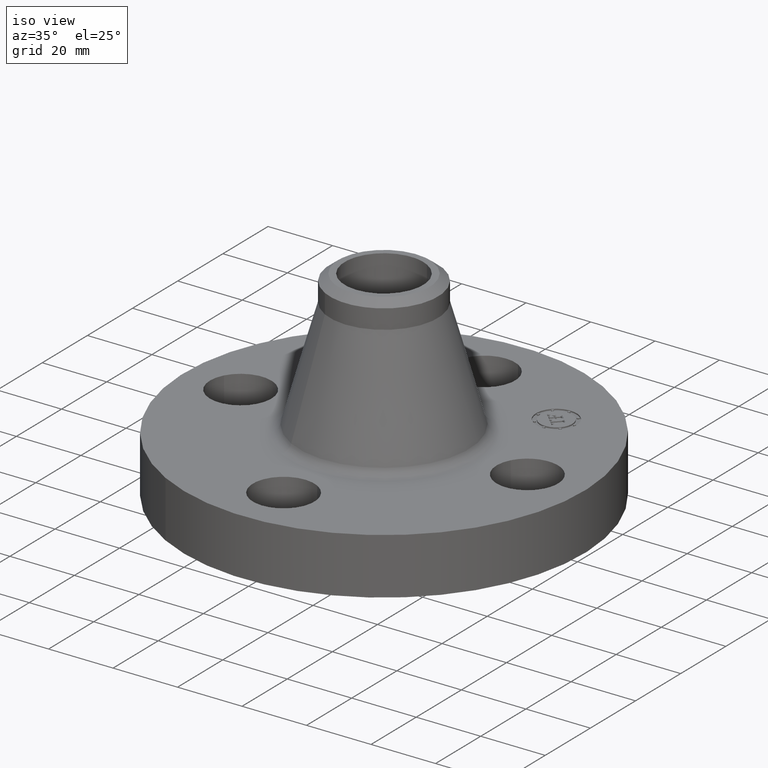
[diagram: clean part render]
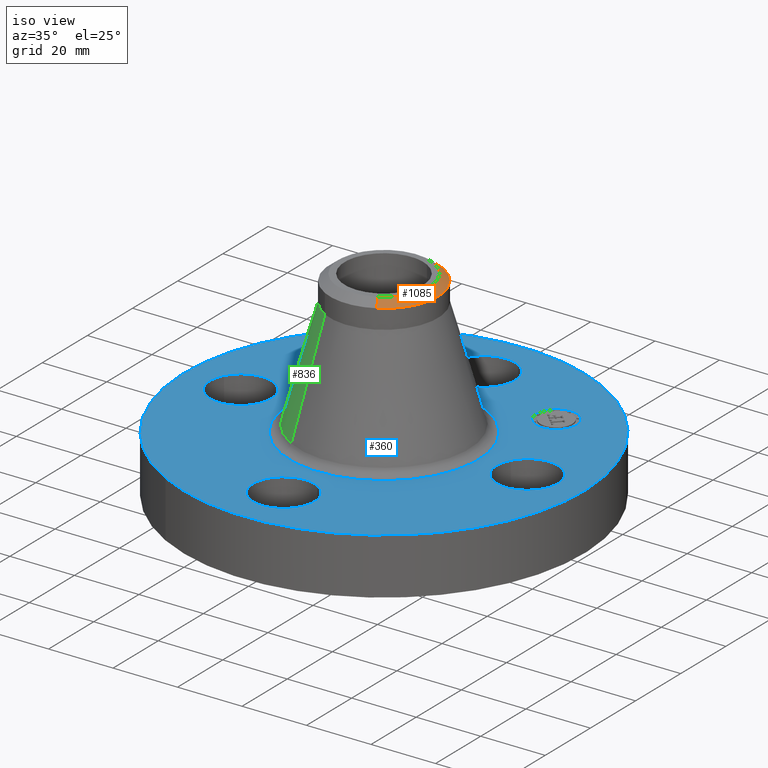
[diagram: same view with three faces highlighted in distinct colors, each labeled with its STEP entity id]
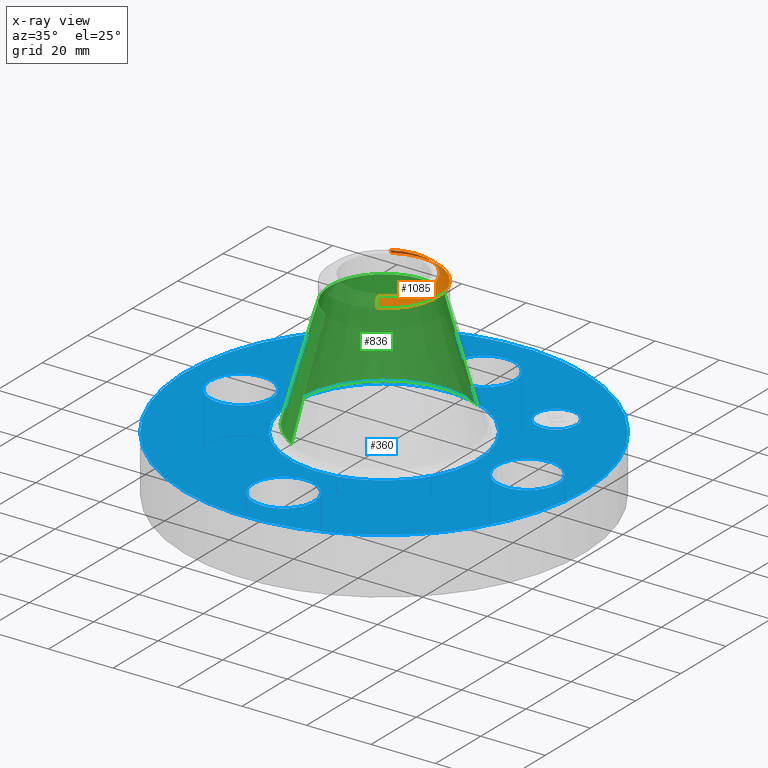
[diagram: x-ray of the same camera — body ghosted, the three highlighted faces saturated]
A machine part, iso view with three faces highlighted in distinct colors.
The next image is the same camera in x-ray (body ghosted, the three faces saturated) — at least one of them is partly hidden behind the body in this view.
Their STEP definitions:

[orange] entity #1085 — the highlighted conical surface has half-angle 52.5 deg.
#778=AXIS2_PLACEMENT_3D('Circle Axis2P3D',#776,#777,$) ;
#1050=AXIS2_PLACEMENT_3D('Cone Axis2P3D',#1047,#1048,#1049) ;
#1068=AXIS2_PLACEMENT_3D('Circle Axis2P3D',#1066,#1067,$) ;
#1075=AXIS2_PLACEMENT_3D('Circle Axis2P3D',#1073,#1074,$) ;
#776=CARTESIAN_POINT('Axis2P3D Location',(-5.24514814784E-017,-1.4013217533E-011,2.44000000001)) ;
#780=CARTESIAN_POINT('Vertex',(0.267155162633,-0.489024244991,2.44000000001)) ;
#782=CARTESIAN_POINT('Vertex',(-0.267155162633,0.489024244991,2.44000000001)) ;
#1047=CARTESIAN_POINT('Axis2P3D Location',(0.,0.,2.44000000001)) ;
#1052=CARTESIAN_POINT('Line Origine',(-0.291788009056,0.53411436792,2.40057479979)) ;
#1056=CARTESIAN_POINT('Vertex',(-0.31642085548,0.57920449085,2.36114959959)) ;
#1059=CARTESIAN_POINT('Line Origine',(0.291788009056,-0.53411436792,2.40057479979)) ;
#1063=CARTESIAN_POINT('Vertex',(0.316420855481,-0.579204490851,2.36114959956)) ;
#1066=CARTESIAN_POINT('Axis2P3D Location',(0.,0.,2.36114959956)) ;
#1070=CARTESIAN_POINT('Vertex',(0.31642085548,0.57920449085,2.36114959959)) ;
#1073=CARTESIAN_POINT('Axis2P3D Location',(0.,0.,2.36114959956)) ;
#777=DIRECTION('Axis2P3D Direction',(0.,0.,-0.0393700787402)) ;
#1048=DIRECTION('Axis2P3D Direction',(-0.,-0.,-0.0393700787402)) ;
#1049=DIRECTION('Axis2P3D XDirection',(-0.0188750212049,0.0345504945626,0.)) ;
#1053=DIRECTION('Vector Direction',(-0.014974561121,0.02741075027,-0.023966985394)) ;
#1060=DIRECTION('Vector Direction',(0.014974561121,-0.02741075027,-0.023966985394)) ;
#1067=DIRECTION('Axis2P3D Direction',(-0.,0.,-0.0393700787402)) ;
#1074=DIRECTION('Axis2P3D Direction',(-0.,0.,-0.0393700787402)) ;
#1054=VECTOR('Line Direction',#1053,0.0393700787402) ;
#1061=VECTOR('Line Direction',#1060,0.0393700787402) ;
#1079=ORIENTED_EDGE('',*,*,#1058,.F.) ;
#1080=ORIENTED_EDGE('',*,*,#784,.F.) ;
#1081=ORIENTED_EDGE('',*,*,#1065,.T.) ;
#1082=ORIENTED_EDGE('',*,*,#1072,.T.) ;
#1083=ORIENTED_EDGE('',*,*,#1077,.F.) ;
#1085=ADVANCED_FACE('PartBody',(#1084),#1051,.T.) ;
#779=CIRCLE('generated circle',#778,0.557240157504) ;
#1069=CIRCLE('generated circle',#1068,0.660000000005) ;
#1076=CIRCLE('generated circle',#1075,0.660000000005) ;
#1051=CONICAL_SURFACE('Cone',#1050,0.557240157482,0.916297857297) ;
#784=EDGE_CURVE('',#781,#783,#779,.F.) ;
#1058=EDGE_CURVE('',#783,#1057,#1055,.T.) ;
#1065=EDGE_CURVE('',#781,#1064,#1062,.T.) ;
#1072=EDGE_CURVE('',#1064,#1071,#1069,.F.) ;
#1077=EDGE_CURVE('',#1057,#1071,#1076,.T.) ;
#1078=EDGE_LOOP('',(#1079,#1080,#1081,#1082,#1083)) ;
#1084=FACE_OUTER_BOUND('',#1078,.T.) ;
#1055=LINE('Line',#1052,#1054) ;
#1062=LINE('Line',#1059,#1061) ;
#781=VERTEX_POINT('',#780) ;
#783=VERTEX_POINT('',#782) ;
#1057=VERTEX_POINT('',#1056) ;
#1064=VERTEX_POINT('',#1063) ;
#1071=VERTEX_POINT('',#1070) ;

[blue] entity #360 — the highlighted planar face has unit normal (0, 0, -1).
#119=AXIS2_PLACEMENT_3D('Circle Axis2P3D',#117,#118,$) ;
#246=AXIS2_PLACEMENT_3D('Plane Axis2P3D',#243,#244,#245) ;
#250=AXIS2_PLACEMENT_3D('Circle Axis2P3D',#248,#249,$) ;
#259=AXIS2_PLACEMENT_3D('Circle Axis2P3D',#257,#258,$) ;
#272=AXIS2_PLACEMENT_3D('Circle Axis2P3D',#270,#271,$) ;
#281=AXIS2_PLACEMENT_3D('Circle Axis2P3D',#279,#280,$) ;
#290=AXIS2_PLACEMENT_3D('Circle Axis2P3D',#288,#289,$) ;
#299=AXIS2_PLACEMENT_3D('Circle Axis2P3D',#297,#298,$) ;
#308=AXIS2_PLACEMENT_3D('Circle Axis2P3D',#306,#307,$) ;
#317=AXIS2_PLACEMENT_3D('Circle Axis2P3D',#315,#316,$) ;
#326=AXIS2_PLACEMENT_3D('Circle Axis2P3D',#324,#325,$) ;
#335=AXIS2_PLACEMENT_3D('Circle Axis2P3D',#333,#334,$) ;
#344=AXIS2_PLACEMENT_3D('Circle Axis2P3D',#342,#343,$) ;
#353=AXIS2_PLACEMENT_3D('Circle Axis2P3D',#351,#352,$) ;
#46=CARTESIAN_POINT('Vertex',(1.4209065393,0.179784576977,0.689999999988)) ;
#72=CARTESIAN_POINT('Vertex',(2.07909346074,-0.179784576955,0.690000000003)) ;
#76=CARTESIAN_POINT('Control Point',(1.4209065393,0.179784576977,0.690000000003)) ;
#77=CARTESIAN_POINT('Control Point',(1.44914703461,0.231478456903,0.690000000002)) ;
#78=CARTESIAN_POINT('Control Point',(1.48753759951,0.27762732854,0.690000000002)) ;
#79=CARTESIAN_POINT('Control Point',(1.53463466834,0.315564920645,0.690000000001)) ;
#80=CARTESIAN_POINT('Control Point',(1.64116640576,0.370929207243,0.689999999999)) ;
#81=CARTESIAN_POINT('Control Point',(1.76072322347,0.38190110985,0.689999999998)) ;
#82=CARTESIAN_POINT('Control Point',(1.82085180885,0.375424381748,0.689999999997)) ;
#83=CARTESIAN_POINT('Control Point',(1.93532958528,0.339243530298,0.689999999996)) ;
#84=CARTESIAN_POINT('Control Point',(2.02762732855,0.262462400496,0.689999999994)) ;
#85=CARTESIAN_POINT('Control Point',(2.06556492066,0.215365331668,0.689999999993)) ;
#86=CARTESIAN_POINT('Control Point',(2.12092920725,0.108833594252,0.689999999992)) ;
#87=CARTESIAN_POINT('Control Point',(2.13190110986,-0.0107232234562,0.689999999991)) ;
#88=CARTESIAN_POINT('Control Point',(2.12542438176,-0.0708518088378,0.68999999999)) ;
#89=CARTESIAN_POINT('Control Point',(2.10733395603,-0.128090697051,0.689999999989)) ;
#90=CARTESIAN_POINT('Control Point',(2.07909346072,-0.179784576977,0.689999999988)) ;
#117=CARTESIAN_POINT('Axis2P3D Location',(1.75000000001,0.,0.689999999988)) ;
#243=CARTESIAN_POINT('Axis2P3D Location',(0.,2.44000000001,0.690000000003)) ;
#248=CARTESIAN_POINT('Axis2P3D Location',(8.39223703654E-016,1.82136720404E-011,0.690000000003)) ;
#252=CARTESIAN_POINT('Vertex',(1.1697983142,2.14130145102,0.690000000025)) ;
#254=CARTESIAN_POINT('Vertex',(-1.1697983142,-2.14130145102,0.690000000025)) ;
#257=CARTESIAN_POINT('Axis2P3D Location',(-8.39223703654E-016,1.82131125579E-011,0.690000000003)) ;
#270=CARTESIAN_POINT('Axis2P3D Location',(0.,1.82133922992E-011,0.690000000003)) ;
#274=CARTESIAN_POINT('Vertex',(-0.551878272917,-1.01020640245,0.690000000003)) ;
#276=CARTESIAN_POINT('Vertex',(0.551878272915,1.01020640245,0.690000000003)) ;
#279=CARTESIAN_POINT('Axis2P3D Location',(0.,1.82133922992E-011,0.690000000003)) ;
#288=CARTESIAN_POINT('Axis2P3D Location',(-3.49676543189E-017,-1.75000000003,0.690000000003)) ;
#292=CARTESIAN_POINT('Vertex',(-0.179784576973,-2.07909346072,0.690000000003)) ;
#294=CARTESIAN_POINT('Vertex',(0.179784576977,-1.4209065393,0.689999999988)) ;
#297=CARTESIAN_POINT('Axis2P3D Location',(3.49676543189E-017,-1.75000000003,0.690000000003)) ;
#306=CARTESIAN_POINT('Axis2P3D Location',(-1.75000000001,5.40152349795E-012,0.690000000003)) ;
#310=CARTESIAN_POINT('Vertex',(-2.07909346074,0.179784576991,0.690000000003)) ;
#312=CARTESIAN_POINT('Vertex',(-1.4209065393,-0.179784576978,0.689999999988)) ;
#315=CARTESIAN_POINT('Axis2P3D Location',(-1.75,3.10252611004E-011,0.690000000003)) ;
#324=CARTESIAN_POINT('Axis2P3D Location',(3.49676543189E-017,1.74999999999,0.690000000003)) ;
#328=CARTESIAN_POINT('Vertex',(0.179784576973,2.07909346069,0.690000000003)) ;
#330=CARTESIAN_POINT('Vertex',(-0.179784576977,1.4209065393,0.689999999988)) ;
#333=CARTESIAN_POINT('Axis2P3D Location',(-3.49676543189E-017,1.74999999999,0.690000000003)) ;
#342=CARTESIAN_POINT('Axis2P3D Location',(1.23743686708,1.23743686702,0.690000000003)) ;
#346=CARTESIAN_POINT('Vertex',(1.06242793876,1.41244579541,0.690000000003)) ;
#348=CARTESIAN_POINT('Vertex',(1.41244579547,1.06242793871,0.690000000003)) ;
#351=CARTESIAN_POINT('Axis2P3D Location',(1.23743686711,1.23743686706,0.690000000003)) ;
#118=DIRECTION('Axis2P3D Direction',(0.,-0.,-0.0393700787402)) ;
#244=DIRECTION('Axis2P3D Direction',(0.,0.,-0.0393700787402)) ;
#245=DIRECTION('Axis2P3D XDirection',(0.0393700787402,0.,0.)) ;
#249=DIRECTION('Axis2P3D Direction',(0.,0.,-0.0393700787402)) ;
#258=DIRECTION('Axis2P3D Direction',(0.,0.,-0.0393700787402)) ;
#271=DIRECTION('Axis2P3D Direction',(0.,0.,-0.0393700787402)) ;
#280=DIRECTION('Axis2P3D Direction',(0.,0.,-0.0393700787402)) ;
#289=DIRECTION('Axis2P3D Direction',(0.,0.,-0.0393700787402)) ;
#298=DIRECTION('Axis2P3D Direction',(0.,0.,-0.0393700787402)) ;
#307=DIRECTION('Axis2P3D Direction',(0.,0.,-0.0393700787402)) ;
#316=DIRECTION('Axis2P3D Direction',(0.,0.,-0.0393700787402)) ;
#325=DIRECTION('Axis2P3D Direction',(0.,0.,-0.0393700787402)) ;
#334=DIRECTION('Axis2P3D Direction',(0.,0.,-0.0393700787402)) ;
#343=DIRECTION('Axis2P3D Direction',(0.,0.,-0.0393700787402)) ;
#352=DIRECTION('Axis2P3D Direction',(0.,0.,-0.0393700787402)) ;
#263=ORIENTED_EDGE('',*,*,#256,.F.) ;
#264=ORIENTED_EDGE('',*,*,#261,.F.) ;
#267=ORIENTED_EDGE('',*,*,#91,.T.) ;
#268=ORIENTED_EDGE('',*,*,#121,.T.) ;
#285=ORIENTED_EDGE('',*,*,#278,.T.) ;
#286=ORIENTED_EDGE('',*,*,#283,.T.) ;
#303=ORIENTED_EDGE('',*,*,#296,.T.) ;
#304=ORIENTED_EDGE('',*,*,#301,.T.) ;
#321=ORIENTED_EDGE('',*,*,#314,.T.) ;
#322=ORIENTED_EDGE('',*,*,#319,.T.) ;
#339=ORIENTED_EDGE('',*,*,#332,.T.) ;
#340=ORIENTED_EDGE('',*,*,#337,.T.) ;
#357=ORIENTED_EDGE('',*,*,#350,.T.) ;
#358=ORIENTED_EDGE('',*,*,#355,.T.) ;
#269=FACE_BOUND('',#266,.T.) ;
#287=FACE_BOUND('',#284,.T.) ;
#305=FACE_BOUND('',#302,.T.) ;
#323=FACE_BOUND('',#320,.T.) ;
#341=FACE_BOUND('',#338,.T.) ;
#359=FACE_BOUND('',#356,.T.) ;
#360=ADVANCED_FACE('PartBody',(#265,#269,#287,#305,#323,#341,#359),#247,.F.) ;
#75=B_SPLINE_CURVE_WITH_KNOTS('',5,(#76,#77,#78,#79,#80,#81,#82,#83,#84,#85,#86,#87,#88,#89,#90),.UNSPECIFIED.,.F.,.U.,(6,3,3,3,6),(-14.9618350128,-7.48091750638,0.,7.48091750638,14.9618350128),.UNSPECIFIED.) ;
#120=CIRCLE('generated circle',#119,0.375000000001) ;
#251=CIRCLE('generated circle',#250,2.44) ;
#260=CIRCLE('generated circle',#259,2.44) ;
#273=CIRCLE('generated circle',#272,1.15112406095) ;
#282=CIRCLE('generated circle',#281,1.15112406095) ;
#291=CIRCLE('generated circle',#290,0.374999999988) ;
#300=CIRCLE('generated circle',#299,0.374999999988) ;
#309=CIRCLE('generated circle',#308,0.375000000021) ;
#318=CIRCLE('generated circle',#317,0.375000000021) ;
#327=CIRCLE('generated circle',#326,0.374999999988) ;
#336=CIRCLE('generated circle',#335,0.374999999988) ;
#345=CIRCLE('generated circle',#344,0.247500000012) ;
#354=CIRCLE('generated circle',#353,0.247500000012) ;
#91=EDGE_CURVE('',#47,#73,#75,.T.) ;
#121=EDGE_CURVE('',#73,#47,#120,.T.) ;
#256=EDGE_CURVE('',#253,#255,#251,.T.) ;
#261=EDGE_CURVE('',#255,#253,#260,.T.) ;
#278=EDGE_CURVE('',#275,#277,#273,.T.) ;
#283=EDGE_CURVE('',#277,#275,#282,.T.) ;
#296=EDGE_CURVE('',#293,#295,#291,.T.) ;
#301=EDGE_CURVE('',#295,#293,#300,.T.) ;
#314=EDGE_CURVE('',#311,#313,#309,.T.) ;
#319=EDGE_CURVE('',#313,#311,#318,.T.) ;
#332=EDGE_CURVE('',#329,#331,#327,.T.) ;
#337=EDGE_CURVE('',#331,#329,#336,.T.) ;
#350=EDGE_CURVE('',#347,#349,#345,.T.) ;
#355=EDGE_CURVE('',#349,#347,#354,.T.) ;
#262=EDGE_LOOP('',(#263,#264)) ;
#266=EDGE_LOOP('',(#267,#268)) ;
#284=EDGE_LOOP('',(#285,#286)) ;
#302=EDGE_LOOP('',(#303,#304)) ;
#320=EDGE_LOOP('',(#321,#322)) ;
#338=EDGE_LOOP('',(#339,#340)) ;
#356=EDGE_LOOP('',(#357,#358)) ;
#265=FACE_OUTER_BOUND('',#262,.T.) ;
#247=PLANE('',#246) ;
#47=VERTEX_POINT('',#46) ;
#73=VERTEX_POINT('',#72) ;
#253=VERTEX_POINT('',#252) ;
#255=VERTEX_POINT('',#254) ;
#275=VERTEX_POINT('',#274) ;
#277=VERTEX_POINT('',#276) ;
#293=VERTEX_POINT('',#292) ;
#295=VERTEX_POINT('',#294) ;
#311=VERTEX_POINT('',#310) ;
#313=VERTEX_POINT('',#312) ;
#329=VERTEX_POINT('',#328) ;
#331=VERTEX_POINT('',#330) ;
#347=VERTEX_POINT('',#346) ;
#349=VERTEX_POINT('',#348) ;

[green] entity #836 — the highlighted conical surface has half-angle 15.576 deg.
#648=AXIS2_PLACEMENT_3D('Circle Axis2P3D',#646,#647,$) ;
#809=AXIS2_PLACEMENT_3D('Cone Axis2P3D',#806,#807,#808) ;
#820=AXIS2_PLACEMENT_3D('Circle Axis2P3D',#818,#819,$) ;
#643=CARTESIAN_POINT('Vertex',(-0.496460113539,-0.908764142152,0.777777407987)) ;
#646=CARTESIAN_POINT('Axis2P3D Location',(0.,0.,0.777777407988)) ;
#650=CARTESIAN_POINT('Vertex',(0.496460113539,0.908764142152,0.777777407988)) ;
#806=CARTESIAN_POINT('Axis2P3D Location',(0.,0.,2.12492912712)) ;
#811=CARTESIAN_POINT('Line Origine',(-0.406440484509,-0.743984316499,1.45135326756)) ;
#815=CARTESIAN_POINT('Vertex',(-0.31642085548,-0.57920449085,2.12492912712)) ;
#818=CARTESIAN_POINT('Axis2P3D Location',(0.,0.,2.12492912712)) ;
#822=CARTESIAN_POINT('Vertex',(0.31642085548,0.57920449085,2.12492912712)) ;
#825=CARTESIAN_POINT('Line Origine',(0.406440484509,0.743984316499,1.45135326756)) ;
#647=DIRECTION('Axis2P3D Direction',(-0.,0.,-0.0393700787402)) ;
#807=DIRECTION('Axis2P3D Direction',(0.,0.,-0.0393700787402)) ;
#808=DIRECTION('Axis2P3D XDirection',(-0.0188750212049,-0.0345504945626,0.)) ;
#812=DIRECTION('Vector Direction',(-0.00506835089648,-0.00927755408533,-0.0379241599695)) ;
#819=DIRECTION('Axis2P3D Direction',(-0.,0.,-0.0393700787402)) ;
#826=DIRECTION('Vector Direction',(0.00506835089648,0.00927755408533,-0.0379241599695)) ;
#813=VECTOR('Line Direction',#812,0.0393700787402) ;
#827=VECTOR('Line Direction',#826,0.0393700787402) ;
#831=ORIENTED_EDGE('',*,*,#652,.F.) ;
#832=ORIENTED_EDGE('',*,*,#817,.T.) ;
#833=ORIENTED_EDGE('',*,*,#824,.T.) ;
#834=ORIENTED_EDGE('',*,*,#829,.F.) ;
#836=ADVANCED_FACE('PartBody',(#835),#810,.T.) ;
#649=CIRCLE('generated circle',#648,1.03553122135) ;
#821=CIRCLE('generated circle',#820,0.660000000003) ;
#810=CONICAL_SURFACE('Cone',#809,0.660000000003,0.271857936206) ;
#652=EDGE_CURVE('',#644,#651,#649,.T.) ;
#817=EDGE_CURVE('',#644,#816,#814,.F.) ;
#824=EDGE_CURVE('',#816,#823,#821,.T.) ;
#829=EDGE_CURVE('',#651,#823,#828,.F.) ;
#830=EDGE_LOOP('',(#831,#832,#833,#834)) ;
#835=FACE_OUTER_BOUND('',#830,.T.) ;
#814=LINE('Line',#811,#813) ;
#828=LINE('Line',#825,#827) ;
#644=VERTEX_POINT('',#643) ;
#651=VERTEX_POINT('',#650) ;
#816=VERTEX_POINT('',#815) ;
#823=VERTEX_POINT('',#822) ;